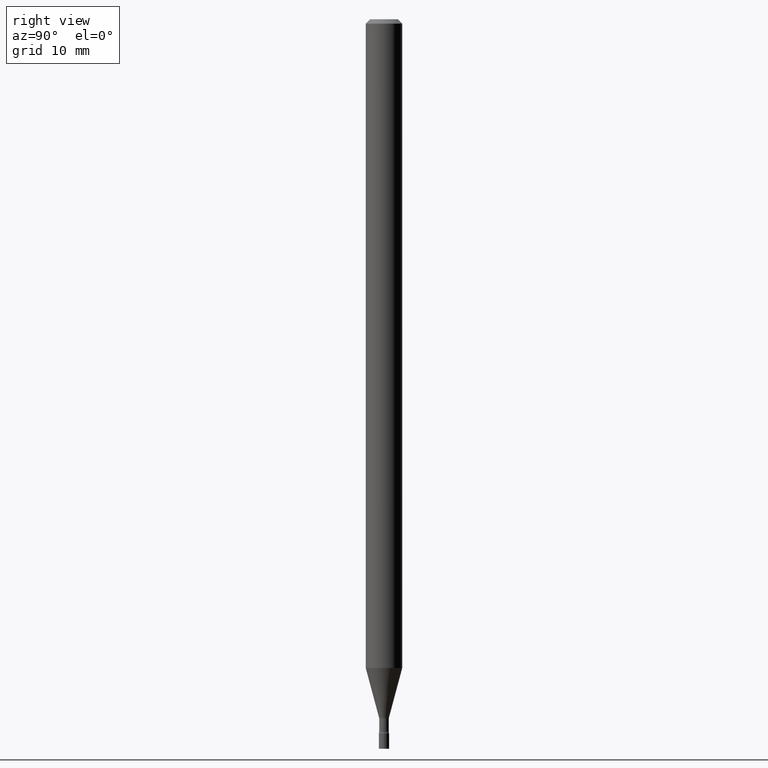
[diagram: clean part render]
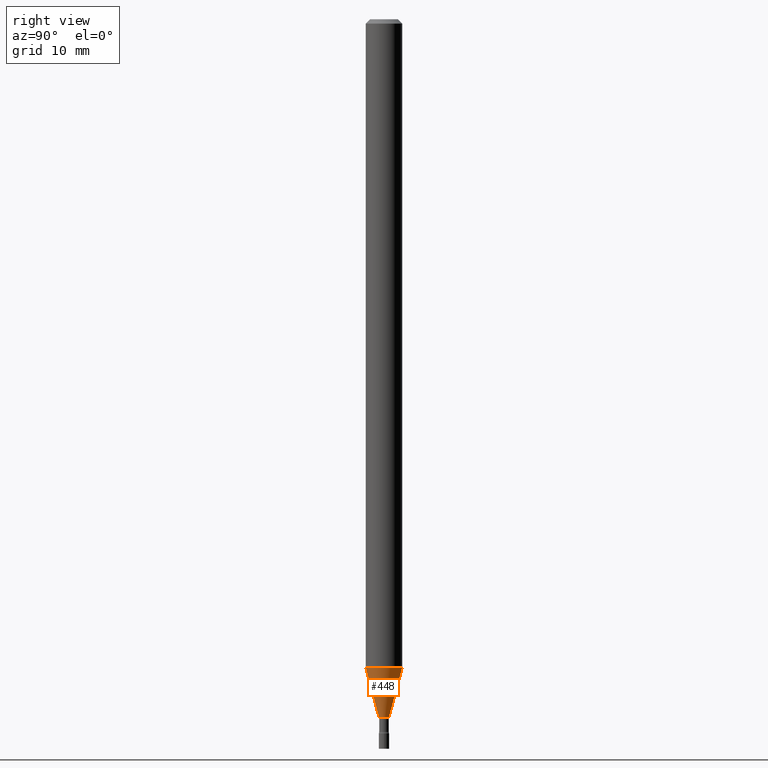
[diagram: same view with one face highlighted and labeled with its STEP entity id]
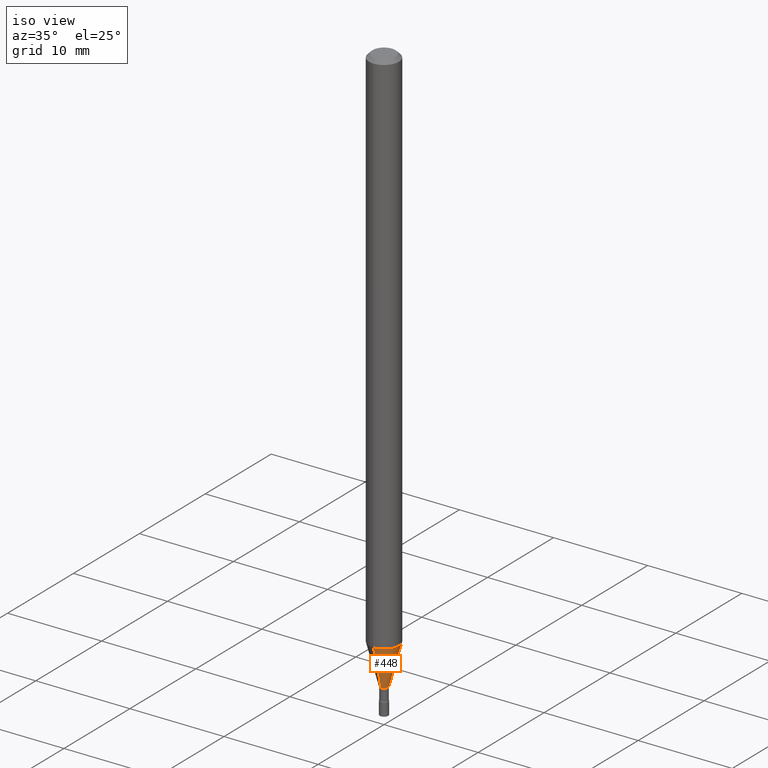
[diagram: same view with one face highlighted and labeled with its STEP entity id]
A machine part, right view. The second image highlights one B-rep face of the part: STEP entity #448.
A second angle (iso view) of the same face is appended — the face is thin or edge-on in the first view.
In plain terms, the highlighted conical surface has half-angle 15 deg.
Its self-contained STEP definition (entity closure, byte-faithful):
#7 = CARTESIAN_POINT ( 'NONE',  ( 2.823025816869058306E-16, 0.01696111260565561982, -2.393092501787273285 ) ) ;
#14 = VERTEX_POINT ( 'NONE', #187 ) ;
#17 = DIRECTION ( 'NONE',  ( -6.982962677686265922E-15, -1.000000000000000000, 4.370956789862821150E-15 ) ) ;
#39 = AXIS2_PLACEMENT_3D ( 'NONE', #275, #508, #313 ) ;
#40 = ORIENTED_EDGE ( 'NONE', *, *, #295, .T. ) ;
#45 = ORIENTED_EDGE ( 'NONE', *, *, #244, .T. ) ;
#61 = CARTESIAN_POINT ( 'NONE',  ( -1.184388162973270680E-16, -0.01696111260567232867, -2.393092501787273285 ) ) ;
#78 = EDGE_CURVE ( 'NONE', #14, #289, #481, .T. ) ;
#82 = DIRECTION ( 'NONE',  ( -2.445479515443959514E-29, 3.491466002574978313E-15, 1.000000000000000000 ) ) ;
#84 = CARTESIAN_POINT ( 'NONE',  ( 5.852258691683313053E-29, -8.355401111007364178E-15, -2.393092501787273285 ) ) ;
#87 = CONICAL_SURFACE ( 'NONE', #239, 0.01696111260566397425, 0.2617993877991500740 ) ;
#88 = VERTEX_POINT ( 'NONE', #260 ) ;
#173 = FACE_OUTER_BOUND ( 'NONE', #382, .T. ) ;
#187 = CARTESIAN_POINT ( 'NONE',  ( -1.184388162973270680E-16, -0.01696111260567232867, -2.393092501787273285 ) ) ;
#189 = CARTESIAN_POINT ( 'NONE',  ( 5.436641031974993128E-29, -7.762014448073923594E-15, -2.223139060311453363 ) ) ;
#190 = EDGE_CURVE ( 'NONE', #289, #88, #284, .T. ) ;
#227 = CARTESIAN_POINT ( 'NONE',  ( 1.205159535236945149E-16, 0.01696111260565561982, -2.393092501787273285 ) ) ;
#239 = AXIS2_PLACEMENT_3D ( 'NONE', #84, #82, #254 ) ;
#244 = EDGE_CURVE ( 'NONE', #464, #88, #472, .T. ) ;
#247 = VECTOR ( 'NONE', #388, 39.37007874015748854 ) ;
#254 = DIRECTION ( 'NONE',  ( -6.982962677686266711E-15, -1.000000000000000000, 0.000000000000000000 ) ) ;
#259 = ORIENTED_EDGE ( 'NONE', *, *, #190, .F. ) ;
#260 = CARTESIAN_POINT ( 'NONE',  ( 4.440892098501167517E-16, 0.06249999999999222150, -2.223139060311453807 ) ) ;
#264 = CARTESIAN_POINT ( 'NONE',  ( -4.364351673553374352E-16, -0.06250000000000777156, -2.223139060311453363 ) ) ;
#275 = CARTESIAN_POINT ( 'NONE',  ( 5.852258691683313053E-29, -8.355401111007364178E-15, -2.393092501787273285 ) ) ;
#280 = CIRCLE ( 'NONE', #39, 0.01696111260566397425 ) ;
#284 = CIRCLE ( 'NONE', #320, 0.06250000000000000000 ) ;
#289 = VERTEX_POINT ( 'NONE', #264 ) ;
#295 = EDGE_CURVE ( 'NONE', #14, #464, #280, .T. ) ;
#298 = VECTOR ( 'NONE', #462, 39.37007874015748854 ) ;
#313 = DIRECTION ( 'NONE',  ( -6.982962677686266711E-15, -1.000000000000000000, 0.000000000000000000 ) ) ;
#320 = AXIS2_PLACEMENT_3D ( 'NONE', #189, #383, #17 ) ;
#382 = EDGE_LOOP ( 'NONE', ( #40, #45, #259, #471 ) ) ;
#383 = DIRECTION ( 'NONE',  ( -2.445479515443959514E-29, 3.491466002574978313E-15, 1.000000000000000000 ) ) ;
#388 = DIRECTION ( 'NONE',  ( -1.807323732225328562E-15, -0.2588190451025179639, 0.9659258262890690894 ) ) ;
#448 = ADVANCED_FACE ( 'NONE', ( #173 ), #87, .T. ) ;
#462 = DIRECTION ( 'NONE',  ( 1.839019923739598738E-15, 0.2588190451025247363, 0.9659258262890673130 ) ) ;
#464 = VERTEX_POINT ( 'NONE', #7 ) ;
#471 = ORIENTED_EDGE ( 'NONE', *, *, #78, .F. ) ;
#472 = LINE ( 'NONE', #227, #298 ) ;
#481 = LINE ( 'NONE', #61, #247 ) ;
#508 = DIRECTION ( 'NONE',  ( -2.445479515443959514E-29, 3.491466002574978313E-15, 1.000000000000000000 ) ) ;